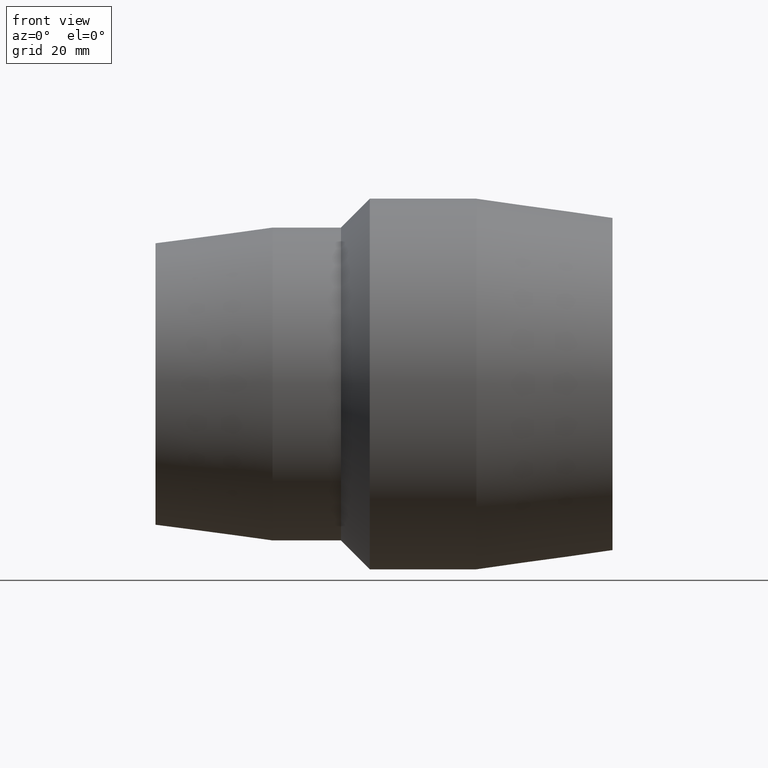
[diagram: clean part render]
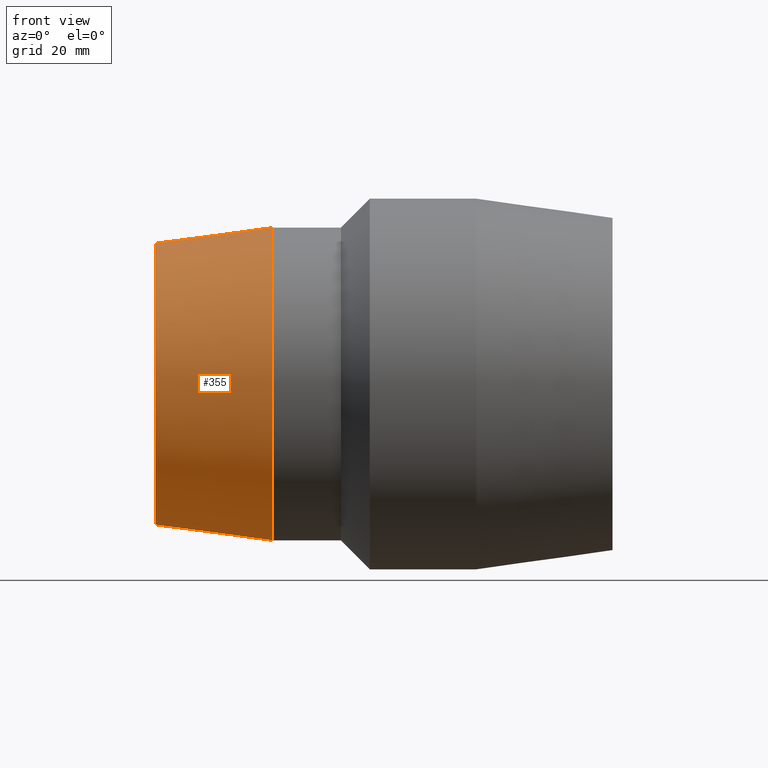
[diagram: same view with one face highlighted and labeled with its STEP entity id]
A machine part, front view. The second image highlights one B-rep face of the part: STEP entity #355.
In plain terms, the highlighted conical surface has half-angle 7.625 deg.
Its self-contained STEP definition (entity closure, byte-faithful):
#16=B_SPLINE_CURVE_WITH_KNOTS('',3,(#609,#610,#611,#612,#613,#614,#615,
#616,#617,#618,#619,#620,#621,#622,#623,#624,#625,#626,#627,#628,#629,#630,
#631,#632,#633,#634,#635,#636,#637,#638,#639,#640,#641,#642),
 .UNSPECIFIED.,.T.,.F.,(4,2,2,2,2,2,2,2,2,2,2,2,2,2,2,2,4),(0.,0.360300405503558,
0.720600811007117,1.08300876601159,1.44541672101606,1.80782467602053,2.170232631025,
2.53053303652856,2.89083344203212,3.27541795027815,3.66000245852417,4.03523672813926,
4.41047099775434,4.78570526736942,5.16093953698451,5.54552404523053,5.93010855347656),
 .UNSPECIFIED.);
#24=CONICAL_SURFACE('',#417,46.55,7.62540344769402);
#54=FACE_BOUND('',#158,.T.);
#55=FACE_BOUND('',#159,.T.);
#97=FACE_OUTER_BOUND('',#157,.T.);
#157=EDGE_LOOP('',(#310));
#158=EDGE_LOOP('',(#311));
#159=EDGE_LOOP('',(#312));
#171=CIRCLE('',#382,49.);
#188=CIRCLE('',#416,44.1);
#200=VERTEX_POINT('',#608);
#202=VERTEX_POINT('',#646);
#219=VERTEX_POINT('',#697);
#231=EDGE_CURVE('',#200,#200,#16,.T.);
#233=EDGE_CURVE('',#202,#202,#171,.T.);
#250=EDGE_CURVE('',#219,#219,#188,.T.);
#310=ORIENTED_EDGE('',*,*,#233,.F.);
#311=ORIENTED_EDGE('',*,*,#231,.T.);
#312=ORIENTED_EDGE('',*,*,#250,.T.);
#355=ADVANCED_FACE('',(#97,#54,#55),#24,.T.);
#382=AXIS2_PLACEMENT_3D('',#647,#468,#469);
#416=AXIS2_PLACEMENT_3D('',#698,#536,#537);
#417=AXIS2_PLACEMENT_3D('',#699,#538,#539);
#468=DIRECTION('center_axis',(1.,1.83697019872103E-16,0.));
#469=DIRECTION('ref_axis',(0.,0.,-1.));
#536=DIRECTION('center_axis',(1.,1.83697019872103E-16,0.));
#537=DIRECTION('ref_axis',(0.,0.,-1.));
#538=DIRECTION('center_axis',(1.,1.83697019872103E-16,0.));
#539=DIRECTION('ref_axis',(-1.92128802164197E-16,1.,0.));
#608=CARTESIAN_POINT('',(-57.6156094384785,44.8987480190627,9.81413900959991));
#609=CARTESIAN_POINT('Ctrl Pts',(-57.6156094384785,44.8987480190628,9.81413900959991));
#610=CARTESIAN_POINT('Ctrl Pts',(-58.8059900995772,44.7430561122388,9.78010728079554));
#611=CARTESIAN_POINT('Ctrl Pts',(-60.0753215826372,44.6307163279427,9.50785071699448));
#612=CARTESIAN_POINT('Ctrl Pts',(-62.4037557121803,44.5211681461434,8.47434986521436));
#613=CARTESIAN_POINT('Ctrl Pts',(-63.4627178246,44.5209927374703,7.71310558893914));
#614=CARTESIAN_POINT('Ctrl Pts',(-65.1323298398048,44.5617439900381,5.97697474000139));
#615=CARTESIAN_POINT('Ctrl Pts',(-65.8545457981718,44.6051161956746,4.88323410447415));
#616=CARTESIAN_POINT('Ctrl Pts',(-66.8104549559409,44.673860066716,2.49879042798759));
#617=CARTESIAN_POINT('Ctrl Pts',(-67.0441877742305,44.696543166838,1.20802651668157));
#618=CARTESIAN_POINT('Ctrl Pts',(-67.0441877742305,44.696543166838,-1.20802651668157));
#619=CARTESIAN_POINT('Ctrl Pts',(-66.8104549559409,44.673860066716,-2.49879042798758));
#620=CARTESIAN_POINT('Ctrl Pts',(-65.8545457981717,44.6051161956746,-4.88323410447414));
#621=CARTESIAN_POINT('Ctrl Pts',(-65.1323298398048,44.5617439900381,-5.97697474000139));
#622=CARTESIAN_POINT('Ctrl Pts',(-63.4627178246,44.5209927374703,-7.71310558893914));
#623=CARTESIAN_POINT('Ctrl Pts',(-62.4037557121803,44.5211681461434,-8.47434986521436));
#624=CARTESIAN_POINT('Ctrl Pts',(-60.0753215826372,44.6307163279427,-9.50785071699448));
#625=CARTESIAN_POINT('Ctrl Pts',(-58.8059900995772,44.7430561122388,-9.78010728079554));
#626=CARTESIAN_POINT('Ctrl Pts',(-56.3449975985212,45.0649334979276,-9.85046446326876));
#627=CARTESIAN_POINT('Ctrl Pts',(-54.9968502258111,45.3020530765737,-9.62177538046222));
#628=CARTESIAN_POINT('Ctrl Pts',(-52.5244997245248,45.8382799061031,-8.6297660445622));
#629=CARTESIAN_POINT('Ctrl Pts',(-51.3994193691279,46.1341070038034,-7.86686194839682));
#630=CARTESIAN_POINT('Ctrl Pts',(-49.6441464624523,46.6358405070025,-6.11129992529047));
#631=CARTESIAN_POINT('Ctrl Pts',(-48.8878733280634,46.8763695706006,-5.00880275543822));
#632=CARTESIAN_POINT('Ctrl Pts',(-47.8800857135029,47.2077017289924,-2.57881523711797));
#633=CARTESIAN_POINT('Ctrl Pts',(-47.6290096439298,47.2958429711679,-1.25078089871695));
#634=CARTESIAN_POINT('Ctrl Pts',(-47.6290096439298,47.2958429711679,1.25078089871694));
#635=CARTESIAN_POINT('Ctrl Pts',(-47.8800857135029,47.2077017289924,2.57881523711796));
#636=CARTESIAN_POINT('Ctrl Pts',(-48.8878733280634,46.8763695706006,5.00880275543821));
#637=CARTESIAN_POINT('Ctrl Pts',(-49.6441464624523,46.6358405070024,6.11129992529047));
#638=CARTESIAN_POINT('Ctrl Pts',(-51.3994193691279,46.1341070038034,7.86686194839681));
#639=CARTESIAN_POINT('Ctrl Pts',(-52.5244997245248,45.8382799061031,8.62976604456219));
#640=CARTESIAN_POINT('Ctrl Pts',(-54.9968502258111,45.3020530765737,9.62177538046222));
#641=CARTESIAN_POINT('Ctrl Pts',(-56.3449975985212,45.0649334979276,9.85046446326876));
#642=CARTESIAN_POINT('Ctrl Pts',(-57.6156094384785,44.8987480190628,9.81413900959991));
#646=CARTESIAN_POINT('',(-34.9,49.,0.));
#647=CARTESIAN_POINT('Origin',(-34.9,6.72331092731897E-15,0.));
#697=CARTESIAN_POINT('',(-71.5,44.1,0.));
#698=CARTESIAN_POINT('Origin',(-71.5,1.4791141972894E-30,0.));
#699=CARTESIAN_POINT('Origin',(-53.2,3.36165546365949E-15,0.));